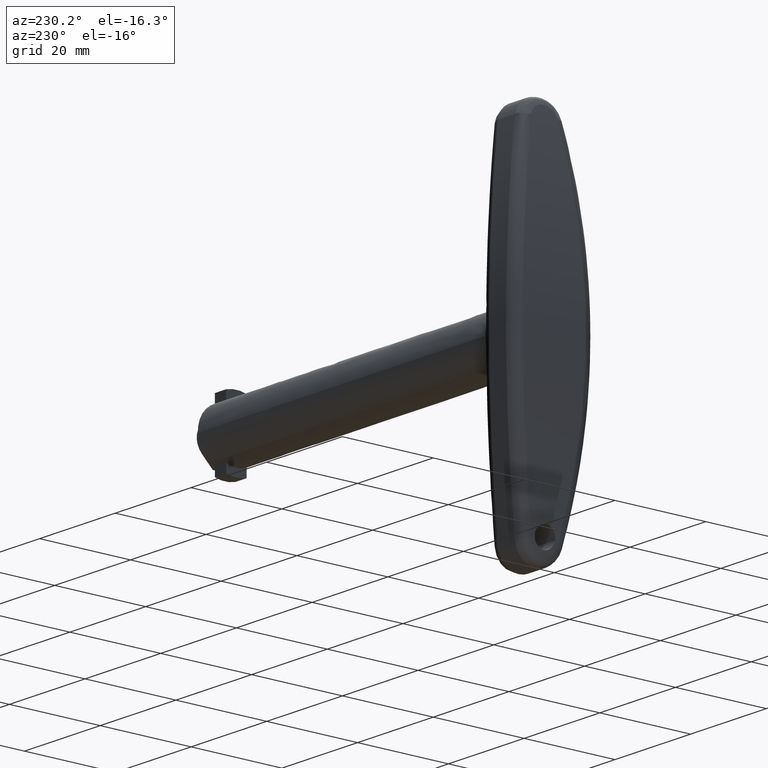
[diagram: clean part render]
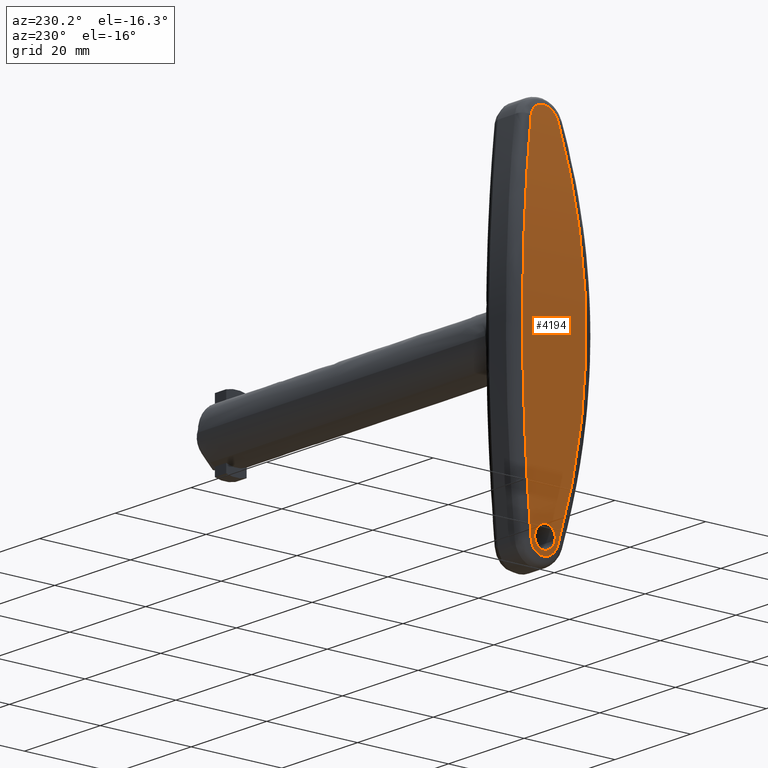
[diagram: same view with one face highlighted and labeled with its STEP entity id]
A machine part, auxiliary view. The second image highlights one B-rep face of the part: STEP entity #4194.
In plain terms, the highlighted face is a freeform B-spline surface patch.
Its self-contained STEP definition (entity closure, byte-faithful):
#248=CARTESIAN_POINT('',(2.471966760394087,2.249490735647851,-36.452040224590078));
#249=VERTEX_POINT('',#248);
#250=CARTESIAN_POINT('',(2.795139429045722,0.000860187839434,-38.749999835572638));
#251=VERTEX_POINT('',#250);
#252=CARTESIAN_POINT('',(2.471966760394087,2.249490735647851,-36.452040224590078));
#253=CARTESIAN_POINT('',(2.474140838656814,2.249828661155167,-36.467996183410619));
#254=CARTESIAN_POINT('',(2.476317709387621,2.249997633507279,-36.483961965536771));
#255=CARTESIAN_POINT('',(2.488466059141008,2.250000143403375,-36.573001754177248));
#256=CARTESIAN_POINT('',(2.498493391957160,2.246452300637515,-36.646272366134752));
#257=CARTESIAN_POINT('',(2.518668255241206,2.232029202029001,-36.793239745590142));
#258=CARTESIAN_POINT('',(2.528718007986621,2.221199809610851,-36.866222824363817));
#259=CARTESIAN_POINT('',(2.558458256385956,2.178461628546134,-37.081566704564914));
#260=CARTESIAN_POINT('',(2.577869981363153,2.136313526777406,-37.221271122320282));
#261=CARTESIAN_POINT('',(2.606329084934456,2.052387660960644,-37.424982456800812));
#262=CARTESIAN_POINT('',(2.615752994012104,2.020733545279979,-37.492247520458378));
#263=CARTESIAN_POINT('',(2.634017995373698,1.951514922326595,-37.622278590843258));
#264=CARTESIAN_POINT('',(2.642881544082386,1.913929384167279,-37.685207517847580));
#265=CARTESIAN_POINT('',(2.668670945492244,1.792433917294266,-37.867869192479013));
#266=CARTESIAN_POINT('',(2.684803982697022,1.699871336289682,-37.981537177507150));
#267=CARTESIAN_POINT('',(2.707289326678299,1.542904209416540,-38.139343898074422));
#268=CARTESIAN_POINT('',(2.714405012663994,1.488153291686553,-38.189171998807979));
#269=CARTESIAN_POINT('',(2.727786880133443,1.374711178660554,-38.282714748589981));
#270=CARTESIAN_POINT('',(2.740354455163030,1.257083294194475,-38.370390964672481));
#271=CARTESIAN_POINT('',(2.751286267709211,1.131134036827617,-38.446406856957232));
#272=CARTESIAN_POINT('',(2.761373340790529,1.000928014097859,-38.516459099631149));
#273=CARTESIAN_POINT('',(2.766011275842482,0.933349721760173,-38.548619302790513));
#274=CARTESIAN_POINT('',(2.778340278270991,0.728267453515765,-38.634024505031498));
#275=CARTESIAN_POINT('',(2.784552324655938,0.587554712131250,-38.676935726246022));
#276=CARTESIAN_POINT('',(2.790862783522082,0.370564873158905,-38.720500856636868));
#277=CARTESIAN_POINT('',(2.792463045521715,0.297144136939184,-38.731540600933002));
#278=CARTESIAN_POINT('',(2.794606403379193,0.148637914463837,-38.746324758979704));
#279=CARTESIAN_POINT('',(2.795135344836550,0.074630399647045,-38.749971632653512));
#280=CARTESIAN_POINT('',(2.795139429045722,0.000860187839434,-38.749999835572638));
#281=B_SPLINE_CURVE_WITH_KNOTS('',3,(#252,#253,#254,#255,#256,#257,#258,#259,#260,#261,#262,#263,#264,#265,#266,#267,#268,#269,#270,#271,#272,#273,#274,#275,#276,#277,#278,#279,#280),.UNSPECIFIED.,.F.,.U.,(4,2,2,2,2,2,2,2,2,1,2,2,2,2,4),(0.246583574562159,0.250000000000024,0.265625000000026,0.281250000000027,0.312500000000030,0.328125000000031,0.343750000000032,0.375000000000034,0.390625000000034,0.406250000000034,0.421875000000034,0.437500000000034,0.468750000000034,0.484375000000034,0.500000000000034),.UNSPECIFIED.);
#282=EDGE_CURVE('',#249,#251,#281,.T.);
#284=CARTESIAN_POINT('',(2.502651232406198,-2.243075665070402,-36.676537553824822));
#285=VERTEX_POINT('',#284);
#286=CARTESIAN_POINT('',(2.795139429045722,0.000860187839434,-38.749999835572638));
#287=CARTESIAN_POINT('',(2.795147604711570,-0.146679877394772,-38.750056208721453));
#288=CARTESIAN_POINT('',(2.793070368930178,-0.293277426117389,-38.735740773968381));
#289=CARTESIAN_POINT('',(2.786776468950927,-0.511732603446628,-38.692291007608631));
#290=CARTESIAN_POINT('',(2.784135669478257,-0.584348637954987,-38.674052314639873));
#291=CARTESIAN_POINT('',(2.777906268789423,-0.725853440439790,-38.630986189612521));
#292=CARTESIAN_POINT('',(2.770709259863901,-0.864470070977240,-38.581194700508078));
#293=CARTESIAN_POINT('',(2.761623107380260,-0.997414129291018,-38.518192493900663));
#294=CARTESIAN_POINT('',(2.754097523827126,-1.094971701483786,-38.465931906561771));
#295=CARTESIAN_POINT('',(2.751470302095238,-1.127131848375921,-38.447675415417621));
#296=CARTESIAN_POINT('',(2.745975525239451,-1.190722169360822,-38.409462017386737));
#297=CARTESIAN_POINT('',(2.743101703888062,-1.222210105400656,-38.389461389894997));
#298=CARTESIAN_POINT('',(2.728283769051907,-1.376151645424367,-38.286246343736337));
#299=CARTESIAN_POINT('',(2.714913976677043,-1.489386074416967,-38.192850100926911));
#300=CARTESIAN_POINT('',(2.692708456756610,-1.644821931480262,-38.037016679224763));
#301=CARTESIAN_POINT('',(2.684945499587955,-1.694213765022852,-37.982429941237292));
#302=CARTESIAN_POINT('',(2.672750918429143,-1.764569131894582,-37.896473883536594));
#303=CARTESIAN_POINT('',(2.668597265437270,-1.787372213686386,-37.867162644721667));
#304=CARTESIAN_POINT('',(2.660198499670120,-1.831237894177864,-37.807822319023863));
#305=CARTESIAN_POINT('',(2.655942426468011,-1.852365224379110,-37.777716022367187));
#306=CARTESIAN_POINT('',(2.634386033614093,-1.954042851928605,-37.625040607419862));
#307=CARTESIAN_POINT('',(2.616265947971321,-2.022828521949123,-37.496100518732568));
#308=CARTESIAN_POINT('',(2.587812362135015,-2.107102828765294,-37.292446925472980));
#309=CARTESIAN_POINT('',(2.578062901489365,-2.132110802778026,-37.222474485087439));
#310=CARTESIAN_POINT('',(2.558503138645453,-2.174744651940825,-37.081677482905476));
#311=CARTESIAN_POINT('',(2.548669048618423,-2.192482128310959,-37.010684803376812));
#312=CARTESIAN_POINT('',(2.526813678632038,-2.223970547406676,-36.852438881581158));
#313=CARTESIAN_POINT('',(2.514769475214969,-2.236128301562676,-36.764921008430761));
#314=CARTESIAN_POINT('',(2.502651232406198,-2.243075665070402,-36.676537553824822));
#315=B_SPLINE_CURVE_WITH_KNOTS('',3,(#286,#287,#288,#289,#290,#291,#292,#293,#294,#295,#296,#297,#298,#299,#300,#301,#302,#303,#304,#305,#306,#307,#308,#309,#310,#311,#312,#313,#314),.UNSPECIFIED.,.F.,.U.,(4,2,2,1,2,2,2,2,2,2,2,2,2,2,4),(0.500000000000034,0.531250000000034,0.546875000000034,0.562500000000034,0.578125000000034,0.585937500000034,0.593750000000034,0.625000000000033,0.640625000000032,0.648437500000031,0.656250000000031,0.687500000000029,0.703125000000027,0.718750000000025,0.737671340279628),.UNSPECIFIED.);
#316=EDGE_CURVE('',#251,#285,#315,.T.);
#425=CARTESIAN_POINT('',(2.181147974978761,-2.001708E-014,-34.250000000000000));
#426=VERTEX_POINT('',#425);
#427=CARTESIAN_POINT('',(2.181147974978761,-2.001708E-014,-34.250000000000000));
#428=CARTESIAN_POINT('',(2.181147987149349,0.149353868280272,-34.249999999719989));
#429=CARTESIAN_POINT('',(2.183029743210868,0.296175851957313,-34.264723460057262));
#430=CARTESIAN_POINT('',(2.188567722332547,0.512769331479741,-34.307971779793483));
#431=CARTESIAN_POINT('',(2.190869871319308,0.584356013048029,-34.325941578584903));
#432=CARTESIAN_POINT('',(2.196411630890539,0.726279171845826,-34.369150325118433));
#433=CARTESIAN_POINT('',(2.199664276673788,0.796743024069678,-34.394490362507639));
#434=CARTESIAN_POINT('',(2.210630094893387,1.001585804711833,-34.479799882740870));
#435=CARTESIAN_POINT('',(2.219590290989891,1.131052785704560,-34.549370087872681));
#436=CARTESIAN_POINT('',(2.232869699930614,1.284103770712451,-34.652045912018252));
#437=CARTESIAN_POINT('',(2.235630509613521,1.314270853847135,-34.673373841427967));
#438=CARTESIAN_POINT('',(2.241366393758322,1.373704710424978,-34.717640284457637));
#439=CARTESIAN_POINT('',(2.244349994553118,1.403047156350589,-34.740644406138443));
#440=CARTESIAN_POINT('',(2.253542740852959,1.488887853809791,-34.811446408790779));
#441=CARTESIAN_POINT('',(2.260002813947364,1.543341971573363,-34.861103919661133));
#442=CARTESIAN_POINT('',(2.280360000588244,1.698644270364665,-35.017213856218433));
#443=CARTESIAN_POINT('',(2.295224744104375,1.791508585991491,-35.130736231668308));
#444=CARTESIAN_POINT('',(2.315505051114629,1.893931441321369,-35.284727588381791));
#445=CARTESIAN_POINT('',(2.319652542634763,1.913746623182430,-35.316178711470762));
#446=CARTESIAN_POINT('',(2.328030786558372,1.951567596783555,-35.379623890851441));
#447=CARTESIAN_POINT('',(2.332271870575808,1.969628843180478,-35.411696520793043));
#448=CARTESIAN_POINT('',(2.345149645703486,2.021310403251895,-35.508945570254760));
#449=CARTESIAN_POINT('',(2.362731430779155,2.083558394485147,-35.641355887092921));
#450=CARTESIAN_POINT('',(2.381137810493759,2.132673626546020,-35.779176467129837));
#451=CARTESIAN_POINT('',(2.399968026955156,2.175127960191586,-35.919740371045272));
#452=CARTESIAN_POINT('',(2.409649487484082,2.193089966032815,-35.991797028876981));
#453=CARTESIAN_POINT('',(2.436727687950348,2.232770815927910,-36.192706244884043));
#454=CARTESIAN_POINT('',(2.454254551335271,2.246737773784433,-36.322047231633348));
#455=CARTESIAN_POINT('',(2.471966760394087,2.249490735647851,-36.452040224590078));
#456=B_SPLINE_CURVE_WITH_KNOTS('',3,(#427,#428,#429,#430,#431,#432,#433,#434,#435,#436,#437,#438,#439,#440,#441,#442,#443,#444,#445,#446,#447,#448,#449,#450,#451,#452,#453,#454,#455),.UNSPECIFIED.,.F.,.U.,(4,2,2,2,2,2,2,2,2,2,2,1,2,2,4),(0.0,0.031250000000004,0.046875000000007,0.062500000000009,0.093750000000013,0.101562500000014,0.109375000000015,0.125000000000017,0.156250000000021,0.164062500000021,0.171875000000022,0.187500000000022,0.203125000000023,0.218750000000023,0.246583574562159),.UNSPECIFIED.);
#457=EDGE_CURVE('',#426,#249,#456,.T.);
#525=CARTESIAN_POINT('',(2.502651232406198,-2.243075665070402,-36.676537553824822));
#526=CARTESIAN_POINT('',(2.494755299550969,-2.247602699421075,-36.618949187099041));
#527=CARTESIAN_POINT('',(2.486827933348072,-2.249917668072992,-36.560993338612747));
#528=CARTESIAN_POINT('',(2.458695398762901,-2.250162449167132,-36.354815314190553));
#529=CARTESIAN_POINT('',(2.438930314380841,-2.235866933373666,-36.209044034881707));
#530=CARTESIAN_POINT('',(2.409975584971056,-2.193620729863491,-35.994222494925950));
#531=CARTESIAN_POINT('',(2.400433565537338,-2.176046041913206,-35.923210998014603));
#532=CARTESIAN_POINT('',(2.381569281373743,-2.133758167461708,-35.782406071733270));
#533=CARTESIAN_POINT('',(2.372206569162409,-2.108890579257868,-35.712307366837102));
#534=CARTESIAN_POINT('',(2.345011972767773,-2.024919008764507,-35.508115174821967));
#535=CARTESIAN_POINT('',(2.327916399972485,-1.956337441542495,-35.378960772788467));
#536=CARTESIAN_POINT('',(2.303764364351142,-1.834763391806679,-35.195585342135928));
#537=CARTESIAN_POINT('',(2.295963896896771,-1.791100085914444,-35.136198238176007));
#538=CARTESIAN_POINT('',(2.280874089873772,-1.697252098010073,-35.021036457407057));
#539=CARTESIAN_POINT('',(2.273710267454754,-1.647846741428116,-34.966220106911557));
#540=CARTESIAN_POINT('',(2.253321268050966,-1.492494237150508,-34.809870405062142));
#541=CARTESIAN_POINT('',(2.241183739269839,-1.379449606575144,-34.716325519760623));
#542=CARTESIAN_POINT('',(2.225151745645396,-1.195378194167341,-34.592374569523052));
#543=CARTESIAN_POINT('',(2.220160269002731,-1.131330240289410,-34.553707222840728));
#544=CARTESIAN_POINT('',(2.211124277019553,-1.001065810497933,-34.483608978865128));
#545=CARTESIAN_POINT('',(2.202977188107655,-0.868061567501207,-34.420299219962487));
#546=CARTESIAN_POINT('',(2.196562312298501,-0.729675868376262,-34.370324960230739));
#547=CARTESIAN_POINT('',(2.191017278279511,-0.588570037018866,-34.327092051804883));
#548=CARTESIAN_POINT('',(2.188675031295281,-0.516474885706199,-34.308809920739890));
#549=CARTESIAN_POINT('',(2.183029910821103,-0.297140564173374,-34.264725451649909));
#550=CARTESIAN_POINT('',(2.181147971293473,-0.149353570099548,-34.249999971950153));
#551=CARTESIAN_POINT('',(2.181147974978761,-2.001708E-014,-34.250000000000000));
#552=B_SPLINE_CURVE_WITH_KNOTS('',3,(#525,#526,#527,#528,#529,#530,#531,#532,#533,#534,#535,#536,#537,#538,#539,#540,#541,#542,#543,#544,#545,#546,#547,#548,#549,#550,#551),.UNSPECIFIED.,.F.,.U.,(4,2,2,2,2,2,2,2,2,2,1,2,2,4),(0.737671340279628,0.750000000000023,0.781250000000022,0.796875000000021,0.812500000000020,0.843750000000017,0.859375000000016,0.875000000000015,0.906250000000011,0.921875000000010,0.937500000000008,0.953125000000006,0.968750000000004,1.0),.UNSPECIFIED.);
#553=EDGE_CURVE('',#285,#426,#552,.T.);
#2844=CARTESIAN_POINT('',(2.606615505575065,-2.928796588169780,37.426967932450097));
#2845=VERTEX_POINT('',#2844);
#2913=CARTESIAN_POINT('',(2.606615505575070,2.928796588169860,37.426967932449699));
#2914=VERTEX_POINT('',#2913);
#2928=CARTESIAN_POINT('',(2.606615505575065,-2.928796588169780,37.426967932450097));
#2929=CARTESIAN_POINT('',(2.629902411219483,-2.892161832972451,37.593338997450651));
#2930=CARTESIAN_POINT('',(2.652599894473817,-2.842154545774721,37.754369919719252));
#2931=CARTESIAN_POINT('',(2.696815132344842,-2.716389325427079,38.066154925701007));
#2932=CARTESIAN_POINT('',(2.718333244262436,-2.640633157151302,38.216909674566672));
#2933=CARTESIAN_POINT('',(2.760066633727443,-2.462128455589352,38.507656163279258));
#2934=CARTESIAN_POINT('',(2.779735153791841,-2.361675938392187,38.643841424544277));
#2935=CARTESIAN_POINT('',(2.816540926176418,-2.139791354234624,38.897501486205982));
#2936=CARTESIAN_POINT('',(2.833703193490054,-2.018257236443480,39.015147902568508));
#2937=CARTESIAN_POINT('',(2.857428473097393,-1.819265047628687,39.177154781640269));
#2938=CARTESIAN_POINT('',(2.864914400046278,-1.750819394361323,39.228157893340857));
#2939=CARTESIAN_POINT('',(2.878958344776007,-1.610641735516780,39.323675250764289));
#2940=CARTESIAN_POINT('',(2.885532317758086,-1.538776230745337,39.368298360422273));
#2941=CARTESIAN_POINT('',(2.903907723483885,-1.317894199514453,39.492841559774952));
#2942=CARTESIAN_POINT('',(2.914372648731539,-1.163632489662340,39.563506726819170));
#2943=CARTESIAN_POINT('',(2.927211657131765,-0.921210973326835,39.650051416125798));
#2944=CARTESIAN_POINT('',(2.930964683508469,-0.839408251358010,39.675317927079753));
#2945=CARTESIAN_POINT('',(2.937390201881623,-0.674900938683344,39.718546364566542));
#2946=CARTESIAN_POINT('',(2.940071589519023,-0.592028889861225,39.736568187417703));
#2947=CARTESIAN_POINT('',(2.946531644588228,-0.341576689091632,39.779968514859121));
#2948=CARTESIAN_POINT('',(2.948737432681265,-0.172174425595701,39.794762987121409));
#2949=CARTESIAN_POINT('',(2.948741343923292,0.171719876753284,39.794789234338168));
#2950=CARTESIAN_POINT('',(2.946535471585032,0.341370927898591,39.779994203692048));
#2951=CARTESIAN_POINT('',(2.937923180689457,0.675378657829347,39.722134640925823));
#2952=CARTESIAN_POINT('',(2.931505173045784,0.840102985024919,39.678992865345919));
#2953=CARTESIAN_POINT('',(2.914381935290914,1.163496463629406,39.563569441285090));
#2954=CARTESIAN_POINT('',(2.903912606786316,1.317838211780232,39.492874682745338));
#2955=CARTESIAN_POINT('',(2.885527270570917,1.538835544235856,39.368264139362971));
#2956=CARTESIAN_POINT('',(2.878949428778497,1.610738679689437,39.323614723268427));
#2957=CARTESIAN_POINT('',(2.864896546517882,1.750989631285381,39.228036352518792));
#2958=CARTESIAN_POINT('',(2.857399195720956,1.819522949689496,39.176955112284311));
#2959=CARTESIAN_POINT('',(2.833683768766750,2.018395412386411,39.015014761113967));
#2960=CARTESIAN_POINT('',(2.816520867173875,2.139933153186065,38.897363970957571));
#2961=CARTESIAN_POINT('',(2.788899146283566,2.306420101031874,38.706997970620449));
#2962=CARTESIAN_POINT('',(2.779377146573137,2.359264167477838,38.641214534936367));
#2963=CARTESIAN_POINT('',(2.764625144013054,2.434516432339041,38.539014132528600));
#2964=CARTESIAN_POINT('',(2.759629537436090,2.458930668845424,38.504359018327563));
#2965=CARTESIAN_POINT('',(2.749481007186974,2.506402412543722,38.433857033255819));
#2966=CARTESIAN_POINT('',(2.744315563335390,2.529512081173610,38.397922868127147));
#2967=CARTESIAN_POINT('',(2.718268974035681,2.640858915275118,38.216459392667467));
#2968=CARTESIAN_POINT('',(2.696774276968522,2.716516467123543,38.065867564380298));
#2969=CARTESIAN_POINT('',(2.652591225686864,2.842168257671453,37.754308059176132));
#2970=CARTESIAN_POINT('',(2.629902559655089,2.892161599454904,37.593340057934491));
#2971=CARTESIAN_POINT('',(2.606615505575025,2.928796588169860,37.426967932449699));
#2972=B_SPLINE_CURVE_WITH_KNOTS('',3,(#2928,#2929,#2930,#2931,#2932,#2933,#2934,#2935,#2936,#2937,#2938,#2939,#2940,#2941,#2942,#2943,#2944,#2945,#2946,#2947,#2948,#2949,#2950,#2951,#2952,#2953,#2954,#2955,#2956,#2957,#2958,#2959,#2960,#2961,#2962,#2963,#2964,#2965,#2966,#2967,#2968,#2969,#2970,#2971),.UNSPECIFIED.,.F.,.U.,(4,2,2,2,2,2,2,2,2,2,2,2,2,2,2,2,2,2,2,2,2,4),(0.0,0.062500000000002,0.125000000000003,0.187500000000005,0.250000000000007,0.281250000000007,0.312500000000007,0.375000000000008,0.406250000000008,0.437500000000008,0.500000000000009,0.562500000000009,0.625000000000009,0.687500000000009,0.718750000000009,0.750000000000009,0.812500000000007,0.843750000000008,0.859375000000008,0.875000000000008,0.937500000000004,1.0),.UNSPECIFIED.);
#2973=EDGE_CURVE('',#2845,#2914,#2972,.T.);
#3078=CARTESIAN_POINT('',(2.606615505575065,2.928796588169775,-37.426967932450097));
#3079=VERTEX_POINT('',#3078);
#3093=CARTESIAN_POINT('',(2.606615505575070,2.928796588169860,37.426967932449699));
#3094=CARTESIAN_POINT('',(2.176580122496997,3.605324471513702,34.354621362961623));
#3095=CARTESIAN_POINT('',(1.799280826191051,4.196465732919731,31.273427580079890));
#3096=CARTESIAN_POINT('',(1.150657374959544,5.210447274256960,25.093505295961290));
#3097=CARTESIAN_POINT('',(0.879332395163121,5.633284748801838,21.994776625571419));
#3098=CARTESIAN_POINT('',(0.443509712617336,6.311576748829639,15.779812255855759));
#3099=CARTESIAN_POINT('',(0.279011001785348,6.567030776318722,12.663576567445510));
#3100=CARTESIAN_POINT('',(0.058070808972797,6.909979107498621,6.413496883997016));
#3101=CARTESIAN_POINT('',(0.001628065237609,6.997475156555812,3.279653078535378));
#3102=CARTESIAN_POINT('',(-0.001558663524553,7.002417213577716,-3.005876079472131));
#3103=CARTESIAN_POINT('',(0.051695752763580,6.919867384794928,-6.157561046862739));
#3104=CARTESIAN_POINT('',(0.188135290426167,6.708091596660837,-10.108551809873131));
#3105=CARTESIAN_POINT('',(0.218917953623463,6.660302899628078,-10.899319551779641));
#3106=CARTESIAN_POINT('',(0.270362305122949,6.580413558671714,-12.086331047582590));
#3107=CARTESIAN_POINT('',(0.288382602817246,6.552425675971498,-12.481988691548070));
#3108=CARTESIAN_POINT('',(0.326129978405803,6.493789729301482,-13.272544152367590));
#3109=CARTESIAN_POINT('',(0.424789018870042,6.340512140330922,-15.247578724763221));
#3110=CARTESIAN_POINT('',(0.544823690758229,6.153890150443056,-17.215863529199840));
#3111=CARTESIAN_POINT('',(0.873408237113022,5.642517642710867,-21.926914823905140));
#3112=CARTESIAN_POINT('',(1.146453136986397,5.217011930385508,-25.050514280036069));
#3113=CARTESIAN_POINT('',(1.797984357204266,4.198500169259796,-31.263984577441398));
#3114=CARTESIAN_POINT('',(2.176472866981173,3.605493204948046,-34.353855086210963));
#3115=CARTESIAN_POINT('',(2.606615505575101,2.928796588169763,-37.426967932450097));
#3116=B_SPLINE_CURVE_WITH_KNOTS('',3,(#3093,#3094,#3095,#3096,#3097,#3098,#3099,#3100,#3101,#3102,#3103,#3104,#3105,#3106,#3107,#3108,#3109,#3110,#3111,#3112,#3113,#3114,#3115),.UNSPECIFIED.,.F.,.U.,(4,2,2,2,2,2,2,2,1,2,2,4),(0.0,0.125000000000000,0.250000000000000,0.375000000000000,0.500000000000000,0.625000000000000,0.656250000000000,0.671875000000000,0.687500000000000,0.750000000000000,0.875000000000000,1.0),.UNSPECIFIED.);
#3117=EDGE_CURVE('',#2914,#3079,#3116,.T.);
#3248=CARTESIAN_POINT('',(2.606615505575120,-2.928796588169805,-37.426967932449998));
#3249=VERTEX_POINT('',#3248);
#3293=CARTESIAN_POINT('',(2.606615505575065,-2.928796588169805,-37.426967932450047));
#3294=CARTESIAN_POINT('',(2.176580122496987,-3.605324471513655,-34.354621362961957));
#3295=CARTESIAN_POINT('',(1.799280826191136,-4.196465732919678,-31.273427580080149));
#3296=CARTESIAN_POINT('',(1.150657374959619,-5.210447274256920,-25.093505295961531));
#3297=CARTESIAN_POINT('',(0.879332395163189,-5.633284748801810,-21.994776625571660));
#3298=CARTESIAN_POINT('',(0.443509712617395,-6.311576748829622,-15.779812255855980));
#3299=CARTESIAN_POINT('',(0.279011001785351,-6.567030776318727,-12.663576567445720));
#3300=CARTESIAN_POINT('',(0.058070808972794,-6.909979107498632,-6.413496883997202));
#3301=CARTESIAN_POINT('',(0.001628065237590,-6.997475156555799,-3.279653078535540));
#3302=CARTESIAN_POINT('',(-0.001558663524578,-7.002417213577705,3.005876079471992));
#3303=CARTESIAN_POINT('',(0.051695752763578,-6.919867384794930,6.157561046862603));
#3304=CARTESIAN_POINT('',(0.188135290426163,-6.708091596660840,10.108551809873020));
#3305=CARTESIAN_POINT('',(0.218917953623459,-6.660302899628086,10.899319551779531));
#3306=CARTESIAN_POINT('',(0.270362305122945,-6.580413558671721,12.086331047582480));
#3307=CARTESIAN_POINT('',(0.288382602817187,-6.552425675971530,12.481988691547970));
#3308=CARTESIAN_POINT('',(0.326129978405743,-6.493789729301517,13.272544152367480));
#3309=CARTESIAN_POINT('',(0.424789018870051,-6.340512140330942,15.247578724763139));
#3310=CARTESIAN_POINT('',(0.544823690758169,-6.153890150443005,17.215863529199741));
#3311=CARTESIAN_POINT('',(0.873408237112961,-5.642517642710818,21.926914823905079));
#3312=CARTESIAN_POINT('',(1.146453136986441,-5.217011930385510,25.050514280036030));
#3313=CARTESIAN_POINT('',(1.797984357204310,-4.198500169259797,31.263984577441398));
#3314=CARTESIAN_POINT('',(2.176472866981161,-3.605493204948072,34.353855086210942));
#3315=CARTESIAN_POINT('',(2.606615505575092,-2.928796588169782,37.426967932450111));
#3316=B_SPLINE_CURVE_WITH_KNOTS('',3,(#3293,#3294,#3295,#3296,#3297,#3298,#3299,#3300,#3301,#3302,#3303,#3304,#3305,#3306,#3307,#3308,#3309,#3310,#3311,#3312,#3313,#3314,#3315),.UNSPECIFIED.,.F.,.U.,(4,2,2,2,2,2,2,2,1,2,2,4),(0.0,0.125000000000000,0.250000000000000,0.375000000000000,0.499999999999999,0.624999999999999,0.656249999999999,0.671874999999999,0.687499999999999,0.749999999999999,0.875000000000000,1.0),.UNSPECIFIED.);
#3317=EDGE_CURVE('',#3249,#2845,#3316,.T.);
#3492=CARTESIAN_POINT('',(2.606615505575065,2.928796588169775,-37.426967932450097));
#3493=CARTESIAN_POINT('',(2.629902411219484,2.892161832972449,-37.593338997450658));
#3494=CARTESIAN_POINT('',(2.652599894473817,2.842154545774720,-37.754369919719217));
#3495=CARTESIAN_POINT('',(2.696815132344840,2.716389325427084,-38.066154925701007));
#3496=CARTESIAN_POINT('',(2.718333244262426,2.640633157151312,-38.216909674566637));
#3497=CARTESIAN_POINT('',(2.760066633727432,2.462128455589373,-38.507656163279208));
#3498=CARTESIAN_POINT('',(2.779735153791827,2.361675938392215,-38.643841424544249));
#3499=CARTESIAN_POINT('',(2.816540926176404,2.139791354234664,-38.897501486205911));
#3500=CARTESIAN_POINT('',(2.833703193490095,2.018257236443529,-39.015147902568458));
#3501=CARTESIAN_POINT('',(2.857428473097433,1.819265047628748,-39.177154781640262));
#3502=CARTESIAN_POINT('',(2.864914400046261,1.750819394361392,-39.228157893340807));
#3503=CARTESIAN_POINT('',(2.878958344775989,1.610641735516855,-39.323675250764232));
#3504=CARTESIAN_POINT('',(2.885532317758069,1.538776230745414,-39.368298360422223));
#3505=CARTESIAN_POINT('',(2.903907723483867,1.317894199514540,-39.492841559774917));
#3506=CARTESIAN_POINT('',(2.914372648731525,1.163632489662436,-39.563506726819128));
#3507=CARTESIAN_POINT('',(2.927211657131753,0.921210973326944,-39.650051416125770));
#3508=CARTESIAN_POINT('',(2.930964683508457,0.839408251358129,-39.675317927079711));
#3509=CARTESIAN_POINT('',(2.937390201881611,0.674900938683469,-39.718546364566500));
#3510=CARTESIAN_POINT('',(2.940071589519011,0.592028889861353,-39.736568187417667));
#3511=CARTESIAN_POINT('',(2.946531644588218,0.341576689091768,-39.779968514859092));
#3512=CARTESIAN_POINT('',(2.948737432681313,0.172174425595844,-39.794762987121402));
#3513=CARTESIAN_POINT('',(2.948741343923341,-0.171719876753129,-39.794789234338147));
#3514=CARTESIAN_POINT('',(2.946535471585034,-0.341370927898423,-39.779994203692063));
#3515=CARTESIAN_POINT('',(2.937923180689463,-0.675378657829171,-39.722134640925859));
#3516=CARTESIAN_POINT('',(2.931505173045792,-0.840102985024737,-39.678992865345982));
#3517=CARTESIAN_POINT('',(2.914381935290926,-1.163496463629224,-39.563569441285168));
#3518=CARTESIAN_POINT('',(2.903912606786337,-1.317838211780047,-39.492874682745423));
#3519=CARTESIAN_POINT('',(2.885527270570939,-1.538835544235672,-39.368264139363092));
#3520=CARTESIAN_POINT('',(2.878949428778522,-1.610738679689252,-39.323614723268548));
#3521=CARTESIAN_POINT('',(2.864896546517910,-1.750989631285196,-39.228036352518913));
#3522=CARTESIAN_POINT('',(2.857399195721039,-1.819522949689318,-39.176955112284453));
#3523=CARTESIAN_POINT('',(2.833683768766836,-2.018395412386240,-39.015014761114138));
#3524=CARTESIAN_POINT('',(2.816520867173956,-2.139933153185897,-38.897363970957741));
#3525=CARTESIAN_POINT('',(2.788899146283649,-2.306420101031716,-38.706997970620641));
#3526=CARTESIAN_POINT('',(2.779377146573165,-2.359264167477685,-38.641214534936559));
#3527=CARTESIAN_POINT('',(2.764625144013083,-2.434516432338894,-38.539014132528777));
#3528=CARTESIAN_POINT('',(2.759629537436175,-2.458930668845277,-38.504359018327747));
#3529=CARTESIAN_POINT('',(2.749481007187062,-2.506402412543581,-38.433857033256039));
#3530=CARTESIAN_POINT('',(2.744315563335369,-2.529512081173461,-38.397922868127381));
#3531=CARTESIAN_POINT('',(2.718268974035661,-2.640858915274987,-38.216459392667723));
#3532=CARTESIAN_POINT('',(2.696774276968567,-2.716516467123425,-38.065867564380547));
#3533=CARTESIAN_POINT('',(2.652591225686911,-2.842168257671363,-37.754308059176417));
#3534=CARTESIAN_POINT('',(2.629902559655192,-2.892161599454833,-37.593340057934782));
#3535=CARTESIAN_POINT('',(2.606615505575130,-2.928796588169805,-37.426967932449998));
#3536=B_SPLINE_CURVE_WITH_KNOTS('',3,(#3492,#3493,#3494,#3495,#3496,#3497,#3498,#3499,#3500,#3501,#3502,#3503,#3504,#3505,#3506,#3507,#3508,#3509,#3510,#3511,#3512,#3513,#3514,#3515,#3516,#3517,#3518,#3519,#3520,#3521,#3522,#3523,#3524,#3525,#3526,#3527,#3528,#3529,#3530,#3531,#3532,#3533,#3534,#3535),.UNSPECIFIED.,.F.,.U.,(4,2,2,2,2,2,2,2,2,2,2,2,2,2,2,2,2,2,2,2,2,4),(0.0,0.062499999999998,0.124999999999997,0.187499999999995,0.249999999999994,0.281249999999994,0.312499999999994,0.374999999999994,0.406249999999994,0.437499999999993,0.499999999999993,0.562499999999992,0.624999999999991,0.687499999999990,0.718749999999990,0.749999999999989,0.812499999999987,0.843749999999987,0.859374999999988,0.874999999999989,0.937499999999994,1.0),.UNSPECIFIED.);
#3537=EDGE_CURVE('',#3079,#3249,#3536,.T.);
#4168=CARTESIAN_POINT('',(3.562779904295820,7.350000044555476,-43.717362085025513));
#4169=CARTESIAN_POINT('',(3.562779904295820,-7.358749726562689,-43.717362085025513));
#4170=CARTESIAN_POINT('',(-3.610898306568863,7.350000044555475,0.002908059512619));
#4171=CARTESIAN_POINT('',(-3.610898306568863,-7.358749726562688,0.002908059512619));
#4172=CARTESIAN_POINT('',(3.563709260008841,7.350000044555475,43.723025704025346));
#4173=CARTESIAN_POINT('',(3.563709260008841,-7.358749726562688,43.723025704025346));
#4181=(BOUNDED_SURFACE()B_SPLINE_SURFACE(1,2,((#4168,#4170,#4172),(#4169,#4171,#4173)),.UNSPECIFIED.,.F.,.F.,.U.)B_SPLINE_SURFACE_WITH_KNOTS((2,2),(3,3),(0.0,14.708749771118161),(5.463315808248520,93.486426508951183),.UNSPECIFIED.)GEOMETRIC_REPRESENTATION_ITEM()RATIONAL_B_SPLINE_SURFACE(((0.998170955874257,0.984253493491546,0.996662818150223),(0.998170955874257,0.984253493491546,0.996662818150223)))REPRESENTATION_ITEM('')SURFACE());
#4182=ORIENTED_EDGE('',*,*,#3317,.T.);
#4183=ORIENTED_EDGE('',*,*,#2973,.T.);
#4184=ORIENTED_EDGE('',*,*,#3117,.T.);
#4185=ORIENTED_EDGE('',*,*,#3537,.T.);
#4186=EDGE_LOOP('',(#4182,#4183,#4184,#4185));
#4187=FACE_OUTER_BOUND('',#4186,.T.);
#4188=ORIENTED_EDGE('',*,*,#316,.F.);
#4189=ORIENTED_EDGE('',*,*,#282,.F.);
#4190=ORIENTED_EDGE('',*,*,#457,.F.);
#4191=ORIENTED_EDGE('',*,*,#553,.F.);
#4192=EDGE_LOOP('',(#4188,#4189,#4190,#4191));
#4193=FACE_BOUND('',#4192,.T.);
#4194=ADVANCED_FACE('',(#4187,#4193),#4181,.T.);